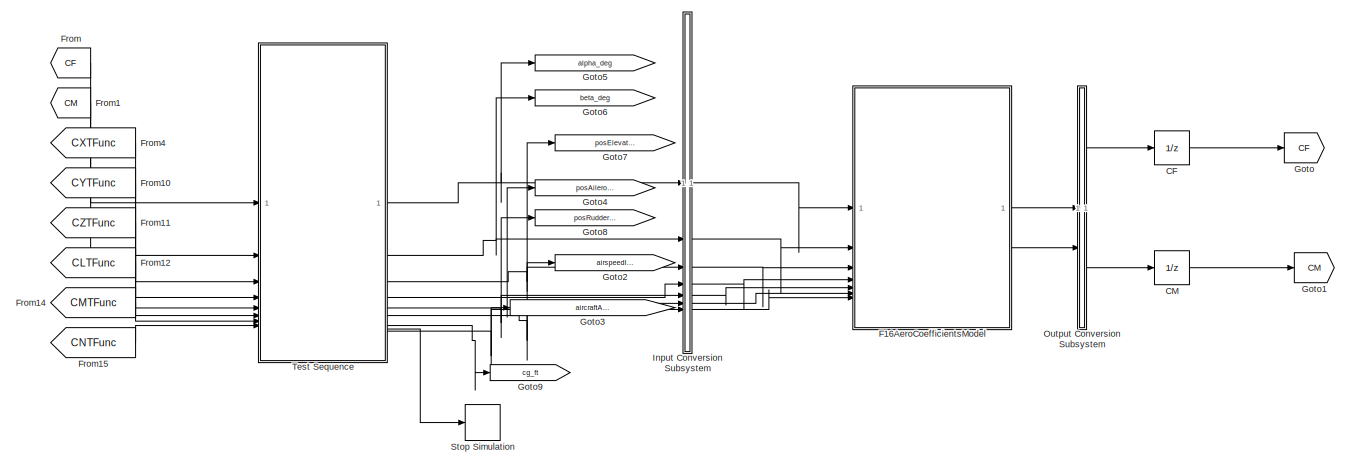
[diagram: root canvas - part 1/2, full width, top band]
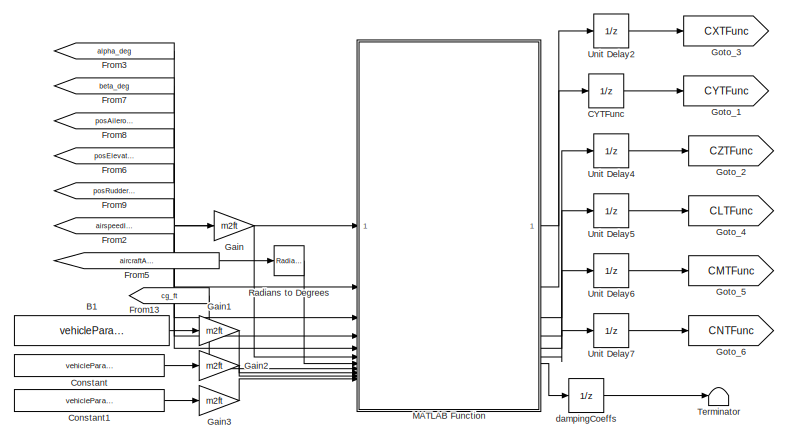
[diagram: root canvas - part 2/2, bottom center region]
MODEL slx_fde53867c718
KIND model
BLOCK [Constant] B1
  Value = vehicleParams.bRef_m
BLOCK [UnitDelay] CF
  HasFrameUpgradeWarning = on
  SampleTime = -1
BLOCK [UnitDelay] CM
  HasFrameUpgradeWarning = on
  SampleTime = -1
BLOCK [UnitDelay] CYTFunc
  HasFrameUpgradeWarning = on
  SampleTime = -1
BLOCK [Constant] Constant
  Value = vehicleParams.cRef_m
BLOCK [Constant] Constant1
  Value = vehicleParams.refCG_m
BLOCK [ModelReference] F16AeroCoefficientsModel
  ModelNameDialog = F16AeroCoefficientsModel
  ModelReferenceVersion = 1.183
BLOCK [From] From
  GotoTag = CF
BLOCK [From] From1
  GotoTag = CM
BLOCK [From] From10
  GotoTag = CYTFunc
BLOCK [From] From11
  GotoTag = CZTFunc
BLOCK [From] From12
  GotoTag = CLTFunc
BLOCK [From] From13
  GotoTag = cg_ft
BLOCK [From] From14
  GotoTag = CMTFunc
BLOCK [From] From15
  GotoTag = CNTFunc
BLOCK [From] From2
  GotoTag = airspeedInBody_mps
BLOCK [From] From3
  GotoTag = alpha_deg
BLOCK [From] From4
  GotoTag = CXTFunc
BLOCK [From] From5
  GotoTag = aircraftAngVelInBody_radps
BLOCK [From] From6
  GotoTag = posElevator_deg
BLOCK [From] From7
  GotoTag = beta_deg
BLOCK [From] From8
  GotoTag = posAilerons_deg
BLOCK [From] From9
  GotoTag = posRudder_deg
BLOCK [Gain] Gain
  Gain = m2ft
BLOCK [Gain] Gain1
  Gain = m2ft
BLOCK [Gain] Gain2
  Gain = m2ft
BLOCK [Gain] Gain3
  Gain = m2ft
BLOCK [Goto] Goto
  GotoTag = CF
BLOCK [Goto] Goto1
  GotoTag = CM
BLOCK [Goto] Goto2
  GotoTag = airspeedInBody_mps
BLOCK [Goto] Goto3
  GotoTag = aircraftAngVelInBody_radps
BLOCK [Goto] Goto4
  GotoTag = posAilerons_deg
BLOCK [Goto] Goto5
  GotoTag = alpha_deg
BLOCK [Goto] Goto6
  GotoTag = beta_deg
BLOCK [Goto] Goto7
  GotoTag = posElevator_deg
BLOCK [Goto] Goto8
  GotoTag = posRudder_deg
BLOCK [Goto] Goto9
  GotoTag = cg_ft
BLOCK [Goto] Goto_1
  GotoTag = CYTFunc
BLOCK [Goto] Goto_2
  GotoTag = CZTFunc
BLOCK [Goto] Goto_3
  GotoTag = CXTFunc
BLOCK [Goto] Goto_4
  GotoTag = CLTFunc
BLOCK [Goto] Goto_5
  GotoTag = CMTFunc
BLOCK [Goto] Goto_6
  GotoTag = CNTFunc
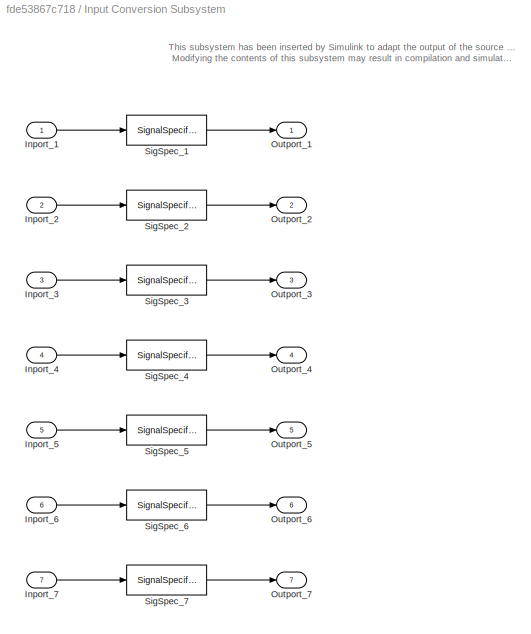
BLOCK [SubSystem] Input Conversion Subsystem
  AttributesFormatString = %<Description>
  Description = Signal spec.\nand routing
  PermitHierarchicalResolution = ExplicitOnly
  Tag = __SLT_ICS__
  TreatAsGroupedWhenPropagatingVariantConditions = off
  UserDataPersistent = on
BLOCK [Inport] Input Conversion Subsystem/Inport_1
BLOCK [Inport] Input Conversion Subsystem/Inport_2
  Port = 2
BLOCK [Inport] Input Conversion Subsystem/Inport_3
  Port = 3
BLOCK [Inport] Input Conversion Subsystem/Inport_4
  Port = 4
BLOCK [Inport] Input Conversion Subsystem/Inport_5
  Port = 5
BLOCK [Inport] Input Conversion Subsystem/Inport_6
  Port = 6
BLOCK [Inport] Input Conversion Subsystem/Inport_7
  Port = 7
BLOCK [Outport] Input Conversion Subsystem/Outport_1
BLOCK [Outport] Input Conversion Subsystem/Outport_2
  Port = 2
BLOCK [Outport] Input Conversion Subsystem/Outport_3
  Port = 3
BLOCK [Outport] Input Conversion Subsystem/Outport_4
  Port = 4
BLOCK [Outport] Input Conversion Subsystem/Outport_5
  Port = 5
BLOCK [Outport] Input Conversion Subsystem/Outport_6
  Port = 6
BLOCK [Outport] Input Conversion Subsystem/Outport_7
  Port = 7
BLOCK [SignalSpecification] Input Conversion Subsystem/SigSpec_1
  Dimensions = [1]
  OutDataTypeStr = double
  SampleTime = 0.004
  SignalType = real
  VarSizeSig = No
BLOCK [SignalSpecification] Input Conversion Subsystem/SigSpec_2
  Dimensions = [1]
  OutDataTypeStr = double
  SampleTime = 0.004
  SignalType = real
  VarSizeSig = No
BLOCK [SignalSpecification] Input Conversion Subsystem/SigSpec_3
  Dimensions = [1]
  OutDataTypeStr = double
  SampleTime = 0.004
  SignalType = real
  VarSizeSig = No
BLOCK [SignalSpecification] Input Conversion Subsystem/SigSpec_4
  Dimensions = [1]
  OutDataTypeStr = double
  SampleTime = 0.004
  SignalType = real
  VarSizeSig = No
BLOCK [SignalSpecification] Input Conversion Subsystem/SigSpec_5
  Dimensions = [1]
  OutDataTypeStr = double
  SampleTime = 0.004
  SignalType = real
  VarSizeSig = No
BLOCK [SignalSpecification] Input Conversion Subsystem/SigSpec_6
  Dimensions = [3]
  OutDataTypeStr = double
  SampleTime = 0.004
  SignalType = real
  VarSizeSig = No
BLOCK [SignalSpecification] Input Conversion Subsystem/SigSpec_7
  Dimensions = [3]
  OutDataTypeStr = double
  SampleTime = 0.004
  SignalType = real
  VarSizeSig = No
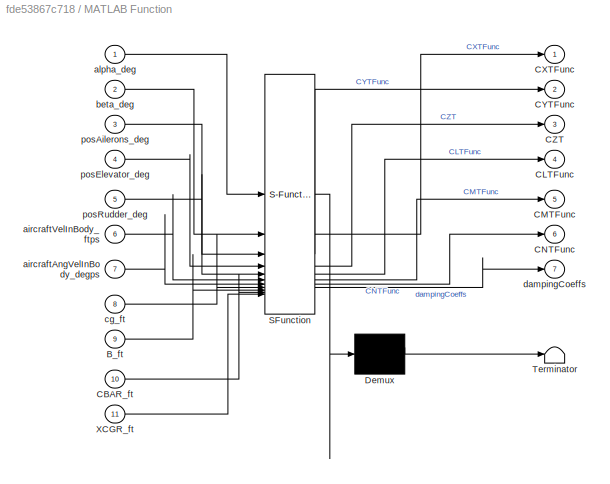
BLOCK [SubSystem] MATLAB Function
  ErrorFcn = Stateflow.Translate.translate
  PermitHierarchicalResolution = ExplicitOnly
  SFBlockType = MATLAB Function
  TreatAsAtomicUnit = on
BLOCK [Demux] MATLAB Function/ Demux 
  Outputs = 1
BLOCK [S-Function] MATLAB Function/ SFunction 
  EnableBusSupport = on
  FunctionName = sf_sfun
  Parameters = CL,CM,CN,CX,dLdAil,dLdRud,dNdAil,dNdRud,maxAilDefl_deg,maxRudderDefl_deg
  PortCounts = [11 8]
  SFcnIsStateOwnerBlock = off
  SFunctionDeploymentMode = off
  Tag = Stateflow S-Function 2
BLOCK [Terminator] MATLAB Function/ Terminator 
BLOCK [Inport] MATLAB Function/B_ft
  Port = 9
BLOCK [Inport] MATLAB Function/CBAR_ft
  Port = 10
BLOCK [Outport] MATLAB Function/CLTFunc
  Port = 4
BLOCK [Outport] MATLAB Function/CMTFunc
  Port = 5
BLOCK [Outport] MATLAB Function/CNTFunc
  Port = 6
BLOCK [Outport] MATLAB Function/CXTFunc
BLOCK [Outport] MATLAB Function/CYTFunc
  Port = 2
BLOCK [Outport] MATLAB Function/CZT
  Port = 3
BLOCK [Inport] MATLAB Function/XCGR_ft
  Port = 11
BLOCK [Inport] MATLAB Function/aircraftAngVelInBody_degps
  Port = 7
BLOCK [Inport] MATLAB Function/aircraftVelInBody_ftps
  Port = 6
BLOCK [Inport] MATLAB Function/alpha_deg
BLOCK [Inport] MATLAB Function/beta_deg
  Port = 2
BLOCK [Inport] MATLAB Function/cg_ft
  Port = 8
BLOCK [Outport] MATLAB Function/dampingCoeffs
  Port = 7
BLOCK [Inport] MATLAB Function/posAilerons_deg
  Port = 3
BLOCK [Inport] MATLAB Function/posElevator_deg
  Port = 4
BLOCK [Inport] MATLAB Function/posRudder_deg
  Port = 5
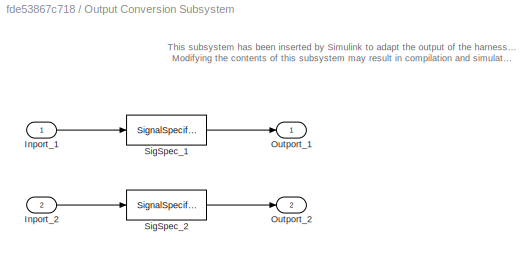
BLOCK [SubSystem] Output Conversion Subsystem
  AttributesFormatString = %<Description>
  Description = Signal spec.\nand routing
  Permissions = ReadOnly
  PermitHierarchicalResolution = ExplicitOnly
  Tag = __SLT_OCS__
  TreatAsGroupedWhenPropagatingVariantConditions = off
  UserDataPersistent = on
BLOCK [Inport] Output Conversion Subsystem/Inport_1
BLOCK [Inport] Output Conversion Subsystem/Inport_2
  Port = 2
BLOCK [Outport] Output Conversion Subsystem/Outport_1
BLOCK [Outport] Output Conversion Subsystem/Outport_2
  Port = 2
BLOCK [SignalSpecification] Output Conversion Subsystem/SigSpec_1
  Dimensions = [3]
  OutDataTypeStr = double
  SampleTime = 0.004
  SignalType = real
  VarSizeSig = No
BLOCK [SignalSpecification] Output Conversion Subsystem/SigSpec_2
  Dimensions = [3]
  OutDataTypeStr = double
  SampleTime = 0.004
  SignalType = real
  VarSizeSig = No
BLOCK [Reference] Radians to Degrees  REF=simulink_extras/Transformations/Radians
to Degrees
  SourceBlock = simulink_extras/Transformations/Radians\nto Degrees
  SourceType = RadiansToDegrees
BLOCK [Stop] Stop Simulation
BLOCK [Terminator] Terminator
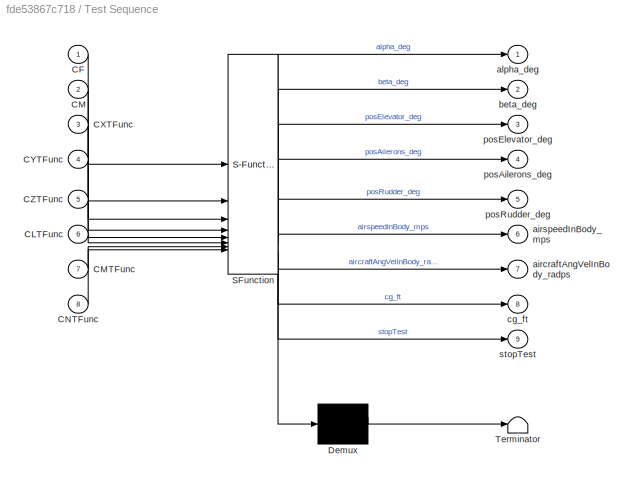
BLOCK [SubSystem] Test Sequence
  ErrorFcn = Stateflow.Translate.translate
  PermitHierarchicalResolution = ExplicitOnly
  SFBlockType = Test Sequence
  TreatAsAtomicUnit = on
BLOCK [Demux] Test Sequence/ Demux 
  Outputs = 1
BLOCK [S-Function] Test Sequence/ SFunction 
  EnableBusSupport = on
  FunctionName = sf_sfun
  PortCounts = [8 10]
  SFcnIsStateOwnerBlock = off
  SFunctionDeploymentMode = off
  Tag = Stateflow S-Function 4
BLOCK [Terminator] Test Sequence/ Terminator 
BLOCK [Inport] Test Sequence/CF
BLOCK [Inport] Test Sequence/CLTFunc
  Port = 6
BLOCK [Inport] Test Sequence/CM
  Port = 2
BLOCK [Inport] Test Sequence/CMTFunc
  Port = 7
BLOCK [Inport] Test Sequence/CNTFunc
  Port = 8
BLOCK [Inport] Test Sequence/CXTFunc
  Port = 3
BLOCK [Inport] Test Sequence/CYTFunc
  Port = 4
BLOCK [Inport] Test Sequence/CZTFunc
  Port = 5
BLOCK [Outport] Test Sequence/aircraftAngVelInBody_radps
  Port = 7
BLOCK [Outport] Test Sequence/airspeedInBody_mps
  Port = 6
BLOCK [Outport] Test Sequence/alpha_deg
BLOCK [Outport] Test Sequence/beta_deg
  Port = 2
BLOCK [Outport] Test Sequence/cg_ft
  Port = 8
BLOCK [Outport] Test Sequence/posAilerons_deg
  Port = 4
BLOCK [Outport] Test Sequence/posElevator_deg
  Port = 3
BLOCK [Outport] Test Sequence/posRudder_deg
  Port = 5
BLOCK [Outport] Test Sequence/stopTest
  Port = 9
BLOCK [UnitDelay] Unit Delay2
  HasFrameUpgradeWarning = on
  SampleTime = -1
BLOCK [UnitDelay] Unit Delay4
  HasFrameUpgradeWarning = on
  SampleTime = -1
BLOCK [UnitDelay] Unit Delay5
  HasFrameUpgradeWarning = on
  SampleTime = -1
BLOCK [UnitDelay] Unit Delay6
  HasFrameUpgradeWarning = on
  SampleTime = -1
BLOCK [UnitDelay] Unit Delay7
  HasFrameUpgradeWarning = on
  SampleTime = -1
BLOCK [UnitDelay] dampingCoeffs
  HasFrameUpgradeWarning = on
  SampleTime = -1
ANNOTATION Input Conversion Subsystem: This subsystem has been inserted by Simulink to adapt the output of the source blocks to the interface required by the harnessed component. Modifying the contents of this subsystem may result in compilation and simulation failure.
ANNOTATION Output Conversion Subsystem: This subsystem has been inserted by Simulink to adapt the output of the harnessed component to the interface required by the sink blocks. Modifying the contents of this subsystem may result in compilation and simulation failure.
LINE B1:1 -> Gain1:1
LINE CF:1 -> Goto:1
LINE CM:1 -> Goto1:1
LINE CYTFunc:1 -> Goto_1:1
LINE Constant1:1 -> Gain3:1
LINE Constant:1 -> Gain2:1
LINE F16AeroCoefficientsModel:1 -> Output Conversion Subsystem:1
LINE F16AeroCoefficientsModel:2 -> Output Conversion Subsystem:2
LINE From10:1 -> Test Sequence:4
LINE From11:1 -> Test Sequence:5
LINE From12:1 -> Test Sequence:6
LINE From13:1 -> MATLAB Function:8
LINE From14:1 -> Test Sequence:7
LINE From15:1 -> Test Sequence:8
LINE From1:1 -> Test Sequence:2
LINE From2:1 -> Gain:1
LINE From3:1 -> MATLAB Function:1
LINE From4:1 -> Test Sequence:3
LINE From5:1 -> Radians to Degrees:1
LINE From6:1 -> MATLAB Function:4
LINE From7:1 -> MATLAB Function:2
LINE From8:1 -> MATLAB Function:3
LINE From9:1 -> MATLAB Function:5
LINE From:1 -> Test Sequence:1
LINE Gain1:1 -> MATLAB Function:9
LINE Gain2:1 -> MATLAB Function:10
LINE Gain3:1 -> MATLAB Function:11
LINE Gain:1 -> MATLAB Function:6
LINE Input Conversion Subsystem/Inport_1:1 -> Input Conversion Subsystem/SigSpec_1:1
LINE Input Conversion Subsystem/Inport_2:1 -> Input Conversion Subsystem/SigSpec_2:1
LINE Input Conversion Subsystem/Inport_3:1 -> Input Conversion Subsystem/SigSpec_3:1
LINE Input Conversion Subsystem/Inport_4:1 -> Input Conversion Subsystem/SigSpec_4:1
LINE Input Conversion Subsystem/Inport_5:1 -> Input Conversion Subsystem/SigSpec_5:1
LINE Input Conversion Subsystem/Inport_6:1 -> Input Conversion Subsystem/SigSpec_6:1
LINE Input Conversion Subsystem/Inport_7:1 -> Input Conversion Subsystem/SigSpec_7:1
LINE Input Conversion Subsystem/SigSpec_1:1 -> Input Conversion Subsystem/Outport_1:1
LINE Input Conversion Subsystem/SigSpec_2:1 -> Input Conversion Subsystem/Outport_2:1
LINE Input Conversion Subsystem/SigSpec_3:1 -> Input Conversion Subsystem/Outport_3:1
LINE Input Conversion Subsystem/SigSpec_4:1 -> Input Conversion Subsystem/Outport_4:1
LINE Input Conversion Subsystem/SigSpec_5:1 -> Input Conversion Subsystem/Outport_5:1
LINE Input Conversion Subsystem/SigSpec_6:1 -> Input Conversion Subsystem/Outport_6:1
LINE Input Conversion Subsystem/SigSpec_7:1 -> Input Conversion Subsystem/Outport_7:1
LINE Input Conversion Subsystem:1 -> F16AeroCoefficientsModel:1
LINE Input Conversion Subsystem:2 -> F16AeroCoefficientsModel:2
LINE Input Conversion Subsystem:3 -> F16AeroCoefficientsModel:3
LINE Input Conversion Subsystem:4 -> F16AeroCoefficientsModel:4
LINE Input Conversion Subsystem:5 -> F16AeroCoefficientsModel:5
LINE Input Conversion Subsystem:6 -> F16AeroCoefficientsModel:6
LINE Input Conversion Subsystem:7 -> F16AeroCoefficientsModel:7
LINE MATLAB Function:1 -> Unit Delay2:1
LINE MATLAB Function:2 -> CYTFunc:1
LINE MATLAB Function:3 -> Unit Delay4:1
LINE MATLAB Function:4 -> Unit Delay5:1
LINE MATLAB Function:5 -> Unit Delay6:1
LINE MATLAB Function:6 -> Unit Delay7:1
LINE MATLAB Function:7 -> dampingCoeffs:1
LINE Output Conversion Subsystem/Inport_1:1 -> Output Conversion Subsystem/SigSpec_1:1
LINE Output Conversion Subsystem/Inport_2:1 -> Output Conversion Subsystem/SigSpec_2:1
LINE Output Conversion Subsystem/SigSpec_1:1 -> Output Conversion Subsystem/Outport_1:1
LINE Output Conversion Subsystem/SigSpec_2:1 -> Output Conversion Subsystem/Outport_2:1
LINE Output Conversion Subsystem:1 -> CF:1
LINE Output Conversion Subsystem:2 -> CM:1
LINE Radians to Degrees:1 -> MATLAB Function:7
NET Test Sequence:1 -> Goto5:1, Input Conversion Subsystem:1
NET Test Sequence:2 -> Goto6:1, Input Conversion Subsystem:2
NET Test Sequence:3 -> Goto7:1, Input Conversion Subsystem:3
NET Test Sequence:4 -> Goto4:1, Input Conversion Subsystem:4
NET Test Sequence:5 -> Goto8:1, Input Conversion Subsystem:5
NET Test Sequence:6 -> Goto2:1, Input Conversion Subsystem:6
NET Test Sequence:7 -> Goto3:1, Input Conversion Subsystem:7
LINE Test Sequence:8 -> Goto9:1
LINE Test Sequence:9 -> Stop Simulation:1
LINE Unit Delay2:1 -> Goto_3:1
LINE Unit Delay4:1 -> Goto_2:1
LINE Unit Delay5:1 -> Goto_4:1
LINE Unit Delay6:1 -> Goto_5:1
LINE Unit Delay7:1 -> Goto_6:1
LINE dampingCoeffs:1 -> Terminator:1
note: NET lines group one-source signal fan-out (src -> all destinations, sorted); 1:1 wires keep LINE
CHART MATLAB Function states=1 transitions=1
  STATE_LABEL 'eML_blk_kernel()'
  STATE_LABEL 'SCRIPT:\nfunction [CXTFunc, CYTFunc, CZT, CLTFunc, CMTFunc, CNTFunc, dampingCoeffs] = fcn(alpha_deg, beta_deg, posAilerons_deg, posElevator_deg, posRudder_deg, aircraftVelInBody_ftps, aircraftAngVelInBody_degps, maxAilDefl_deg, maxRudderDefl_deg, dNdAil, dNdRud, dLdRud, cg_ft, CM, CN, CX, CL, dLdAil, B_ft, CBAR_ft, XCGR_ft)\n\nP = aircraftAngVelInBody_degps(1);\nQ = aircraftAngVelInBody_degps(2);\nR = ...<+1877ch>'
CHART Test Sequence states=13 transitions=13
  STATE_LABEL 'initialization\nalpha_deg=0;\nbeta_deg=0;\nposElevator_deg=0;\nposAilerons_deg=0;\nposRudder_deg=0;\nairspeedInBody_mps = zeros(3,1);\naircraftAngVelInBody_radps = zeros(3,1);\ncg_ft = [11.32 * .35; 0; 0];\nstopTest = false;'
  STATE_LABEL 'verifyInitialization\nverify(isClose(CF(1), CXTFunc));\nverify(isClose(CF(2), CYTFunc));\nverify(isClose(CF(3), CZTFunc));\nverify(isClose(CM(1), CLTFunc));\nverify(isClose(CM(2), CMTFunc));\nverify(isClose(CM(3), CNTFunc));'
  STATE_LABEL 'airspeedIncrease\nairspeedInBody_mps(1) = 257;'
  STATE_LABEL 'verifyAirspeedIncrease\nverify(isClose(CF(1), CXTFunc));\nverify(isClose(CF(2), CYTFunc));\nverify(isClose(CF(3), CZTFunc));\nverify(isClose(CM(1), CLTFunc));\nverify(isClose(CM(2), CMTFunc));\nverify(isClose(CM(3), CNTFunc));'
  STATE_LABEL 'addSideslip\nairspeedInBody_mps(2) = 40;\nbeta_deg = 3;'
  STATE_LABEL 'verifySideslipAdd\nverify(isClose(CF(1), CXTFunc));\nverify(isClose(CF(2), CYTFunc));\nverify(isClose(CF(3), CZTFunc));\nverify(isClose(CM(1), CLTFunc));\nverify(isClose(CM(2), CMTFunc));\nverify(isClose(CM(3), CNTFunc));'
  STATE_LABEL 'addCSDeflection\nposElevator_deg=5;\nposAilerons_deg=-3;\nposRudder_deg=5;'
  STATE_LABEL "verifyAddCSDeflection\nverify(isClose(CF(1), CXTFunc,'atol',0.001));\nverify(isClose(CF(2), CYTFunc,'atol',0.001));\nverify(isClose(CF(3), CZTFunc,'atol',0.001));\nverify(isClose(CM(1), CLTFunc,'atol',0.001));\nverify(isClose(CM(2), CMTFunc,'atol',0.001));\nverify(isClose(CM(3), CNTFunc,'atol',0.001));"
  STATE_LABEL 'addAngularVelocity\naircraftAngVelInBody_radps = [ 0.2; 0.1; 0.5];\n'
  STATE_LABEL 'verifyAddAngVel\nverify(isClose(CF(1), CXTFunc));\nverify(isClose(CF(2), CYTFunc));\nverify(isClose(CF(3), CZTFunc));\nverify(isClose(CM(1), CLTFunc));\nverify(isClose(CM(2), CMTFunc));\nverify(isClose(CM(3), CNTFunc));'
  STATE_LABEL 'addExtras\nairspeedInBody_mps(3) = -90;\nalpha_deg = 3;\n'
  STATE_LABEL 'verifyExtras\nverify(isClose(CF(1), CXTFunc));\nverify(isClose(CF(2), CYTFunc));\nverify(isClose(CF(3), CZTFunc));\nverify(isClose(CM(1), CLTFunc));\nverify(isClose(CM(2), CMTFunc));\nverify(isClose(CM(3), CNTFunc));'
  STATE_LABEL 'End\nstopTest = true;'
CHART  states=0 transitions=0
CHART  states=0 transitions=0
